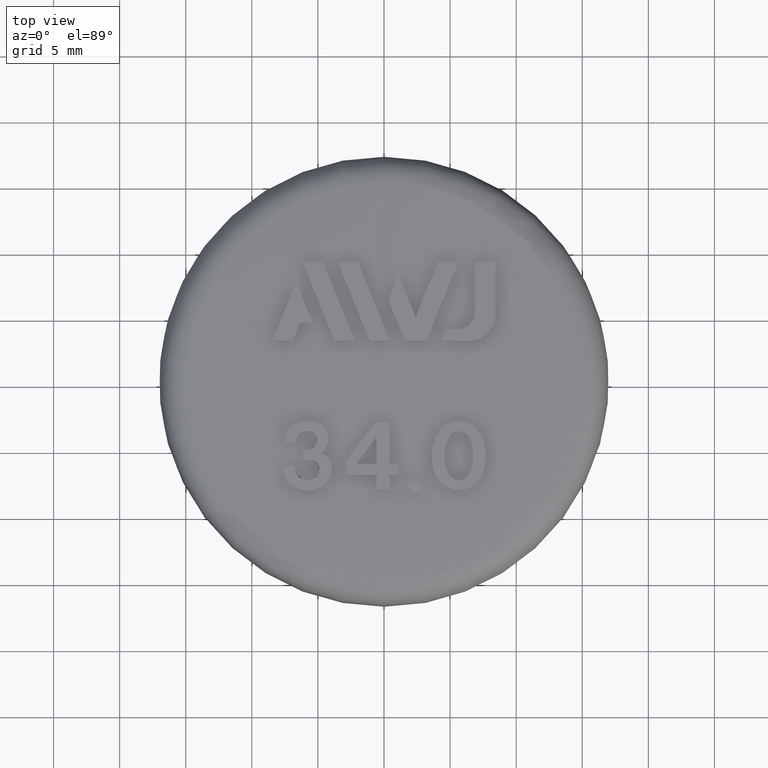
[diagram: clean part render]
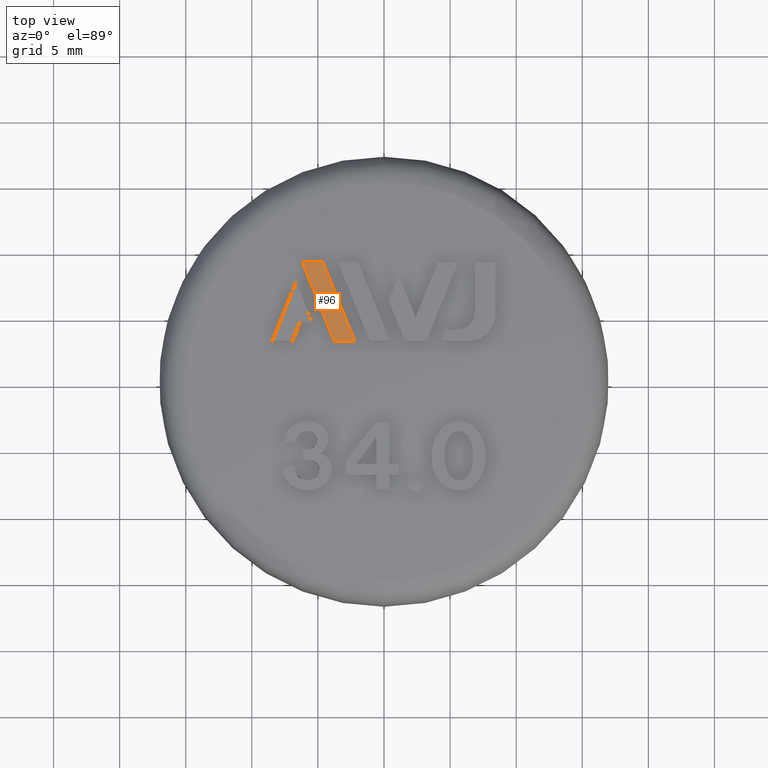
[diagram: same view with one face highlighted and labeled with its STEP entity id]
A machine part, top view. The second image highlights one B-rep face of the part: STEP entity #96.
In plain terms, the highlighted face is a freeform B-spline surface patch.
Its self-contained STEP definition (entity closure, byte-faithful):
#96 = ADVANCED_FACE( '', ( #217 ), #218, .T. );
#217 = FACE_OUTER_BOUND( '', #533, .T. );
#218 = ( B_SPLINE_SURFACE( 3, 3, ( ( #535, #536, #537, #538 ), ( #539, #540, #541, #542 ), ( #543, #544, #545, #546 ), ( #547, #548, #549, #550 ) ), .UNSPECIFIED., .F., .F., .F. )B_SPLINE_SURFACE_WITH_KNOTS( ( 4, 4 ), ( 4, 4 ), ( 3.61477737904520, 4.04188321948915 ), ( 1.53325957986011, 1.55748914780865 ), .UNSPECIFIED. )RATIONAL_B_SPLINE_SURFACE( ( ( 1.00000000000000, 0.984856067956475, 0.984856067956475, 1.00000000000000 ), ( 0.999951077934773, 0.984807886763678, 0.984807886763678, 0.999951077934773 ), ( 0.999951077934773, 0.984807886763678, 0.984807886763678, 0.999951077934773 ), ( 1.00000000000000, 0.984856067956475, 0.984856067956475, 1.00000000000000 ) ) )BOUNDED_SURFACE(  )REPRESENTATION_ITEM( '' )GEOMETRIC_REPRESENTATION_ITEM(  )SURFACE(  ) );
#533 = EDGE_LOOP( '', ( #1070, #1071, #1072, #1073 ) );
#535 = CARTESIAN_POINT( '', ( -1.67820942702883, 3.27788799526414, 27.4735605779659 ) );
#536 = CARTESIAN_POINT( '', ( -2.14846026536600, 3.03712949738201, 27.4735605779659 ) );
#537 = CARTESIAN_POINT( '', ( -2.55700415629544, 2.70217816592695, 27.4735605779659 ) );
#538 = CARTESIAN_POINT( '', ( -2.88528021705402, 2.28825144150329, 27.4735605779659 ) );
#539 = CARTESIAN_POINT( '', ( -2.78417695313050, 5.43806992403505, 27.4412642835116 ) );
#540 = CARTESIAN_POINT( '', ( -3.56433080353917, 5.03864762889249, 27.4412642835116 ) );
#541 = CARTESIAN_POINT( '', ( -4.24211181653335, 4.48295787859201, 27.4412642835116 ) );
#542 = CARTESIAN_POINT( '', ( -4.78672718330952, 3.79624665658112, 27.4412642835116 ) );
#543 = CARTESIAN_POINT( '', ( -3.88988501674056, 7.59774506922296, 27.3795704415122 ) );
#544 = CARTESIAN_POINT( '', ( -4.97986917527077, 7.03969619970688, 27.3795704415122 ) );
#545 = CARTESIAN_POINT( '', ( -5.92682414668984, 6.26331981629501, 27.3795704415122 ) );
#546 = CARTESIAN_POINT( '', ( -6.68772806579142, 5.30388809255911, 27.3795704415122 ) );
#547 = CARTESIAN_POINT( '', ( -4.99517133729299, 9.75659646352288, 27.2884881065384 ) );
#548 = CARTESIAN_POINT( '', ( -6.39486762737915, 9.03998152353907, 27.2884881065384 ) );
#549 = CARTESIAN_POINT( '', ( -7.61089388794537, 8.04300268208742, 27.2884881065384 ) );
#550 = CARTESIAN_POINT( '', ( -8.58800386183219, 6.81095447863924, 27.2884881065384 ) );
#1070 = ORIENTED_EDGE( '', *, *, #1641, .T. );
#1071 = ORIENTED_EDGE( '', *, *, #1642, .T. );
#1072 = ORIENTED_EDGE( '', *, *, #1643, .T. );
#1073 = ORIENTED_EDGE( '', *, *, #1644, .T. );
#1641 = EDGE_CURVE( '', #1890, #1891, #1892, .T. );
#1642 = EDGE_CURVE( '', #1891, #1893, #1894, .T. );
#1643 = EDGE_CURVE( '', #1893, #1895, #1896, .T. );
#1644 = EDGE_CURVE( '', #1895, #1890, #1897, .T. );
#1890 = VERTEX_POINT( '', #2717 );
#1891 = VERTEX_POINT( '', #2718 );
#1892 = B_SPLINE_CURVE_WITH_KNOTS( '', 3, ( #2719, #2720, #2721, #2722 ), .UNSPECIFIED., .F., .F., ( 4, 4 ), ( 2.15837159561018E-007, 0.00647203081956696 ), .UNSPECIFIED. );
#1893 = VERTEX_POINT( '', #2723 );
#1894 = B_SPLINE_CURVE_WITH_KNOTS( '', 3, ( #2724, #2725, #2726, #2727, #2728, #2729 ), .UNSPECIFIED., .F., .F., ( 4, 2, 4 ), ( 1.90274666461862, 1.90352173852515, 1.90429681243168 ), .UNSPECIFIED. );
#1895 = VERTEX_POINT( '', #2730 );
#1896 = B_SPLINE_CURVE_WITH_KNOTS( '', 3, ( #2731, #2732, #2733, #2734 ), .UNSPECIFIED., .F., .F., ( 4, 4 ), ( 2.15724329477924E-007, 0.00647192370075041 ), .UNSPECIFIED. );
#1897 = B_SPLINE_CURVE_WITH_KNOTS( '', 3, ( #2735, #2736, #2737, #2738, #2739, #2740 ), .UNSPECIFIED., .F., .F., ( 4, 2, 4 ), ( 1.90158946692771, 1.90236429028434, 1.90313911364097 ), .UNSPECIFIED. );
#2717 = CARTESIAN_POINT( '', ( -6.18475149699999, 8.99710847200001, 27.2901050100084 ) );
#2718 = CARTESIAN_POINT( '', ( -3.76123767899999, 2.99850000000000, 27.4564370277492 ) );
#2719 = CARTESIAN_POINT( '', ( -6.18475149699999, 8.99710847200001, 27.2901050100083 ) );
#2720 = CARTESIAN_POINT( '', ( -5.37713793231184, 6.99812768003637, 27.3688469636273 ) );
#2721 = CARTESIAN_POINT( '', ( -4.56930088772532, 4.99859373735344, 27.4243838756027 ) );
#2722 = CARTESIAN_POINT( '', ( -3.76123767899999, 2.99850000000001, 27.4564370277492 ) );
#2723 = CARTESIAN_POINT( '', ( -2.21126708099999, 2.99850000000000, 27.4729830516630 ) );
#2724 = CARTESIAN_POINT( '', ( -3.76123767899992, 2.99850000000001, 27.4564370277492 ) );
#2725 = CARTESIAN_POINT( '', ( -3.50295735901268, 2.99850000000000, 27.4598828100413 ) );
#2726 = CARTESIAN_POINT( '', ( -3.24467262271434, 2.99850000000001, 27.4629872354750 ) );
#2727 = CARTESIAN_POINT( '', ( -2.72797149179068, 2.99850000000000, 27.4685063969134 ) );
#2728 = CARTESIAN_POINT( '', ( -2.46961983912448, 2.99850000000000, 27.4709204094111 ) );
#2729 = CARTESIAN_POINT( '', ( -2.21126708099999, 2.99850000000001, 27.4729830516631 ) );
#2730 = CARTESIAN_POINT( '', ( -4.63512173599999, 8.99710847200001, 27.3188604127949 ) );
#2731 = CARTESIAN_POINT( '', ( -2.21126708099999, 2.99850000000001, 27.4729830516631 ) );
#2732 = CARTESIAN_POINT( '', ( -3.01940331603683, 4.99849321577398, 27.4448788287809 ) );
#2733 = CARTESIAN_POINT( '', ( -3.82740049953474, 6.99814230376054, 27.3934731474007 ) );
#2734 = CARTESIAN_POINT( '', ( -4.63512173599999, 8.99710847200001, 27.3188604127949 ) );
#2735 = CARTESIAN_POINT( '', ( -4.63512173600006, 8.99710847200001, 27.3188604127949 ) );
#2736 = CARTESIAN_POINT( '', ( -4.89340994918676, 8.99710847200002, 27.3147494559899 ) );
#2737 = CARTESIAN_POINT( '', ( -5.15169497449651, 8.99710847200002, 27.3102970317929 ) );
#2738 = CARTESIAN_POINT( '', ( -5.66825866497051, 8.99710847200002, 27.3007109204992 ) );
#2739 = CARTESIAN_POINT( '', ( -5.92650560736643, 8.99710847200001, 27.2955778536271 ) );
#2740 = CARTESIAN_POINT( '', ( -6.18475149699999, 8.99710847200001, 27.2901050100084 ) );